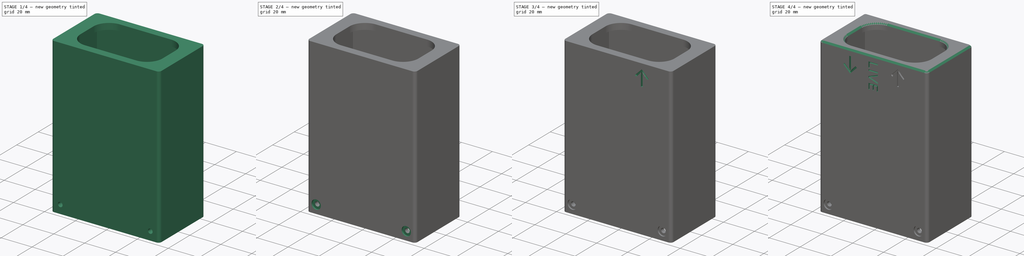
[diagram: build sequence overview — one tinted view per stage of 4, left to right]
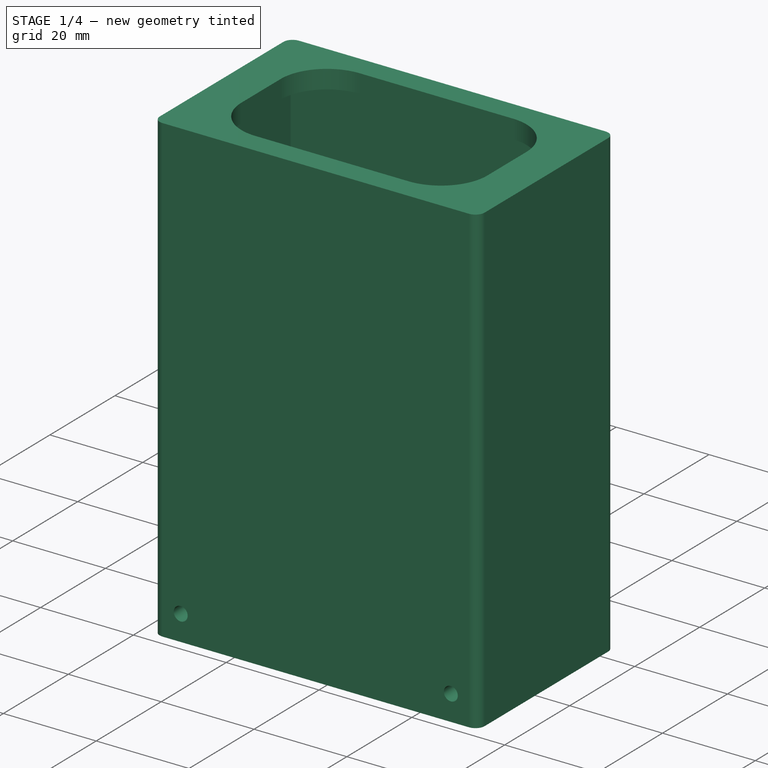
[diagram: stage 1 of 4 — iso view after this stage's code; geometry added in this stage tinted green]
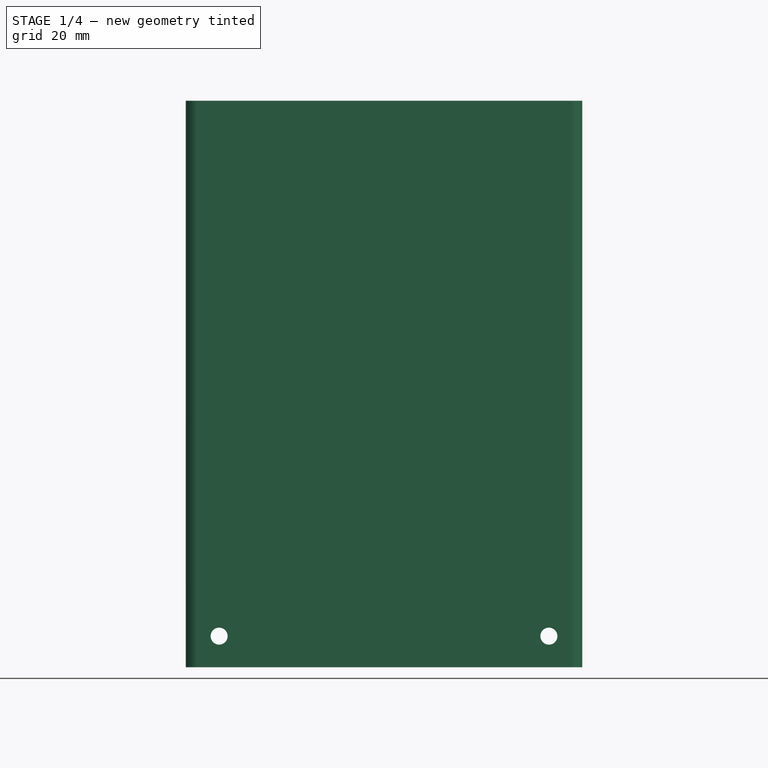
[diagram: stage 1 of 4 — front view after this stage's code; geometry added in this stage tinted green]
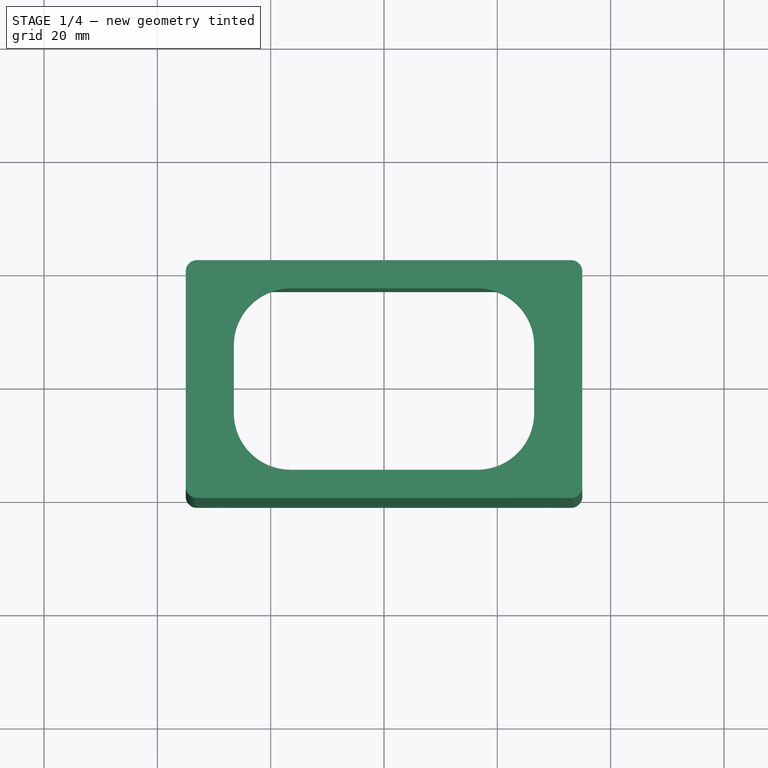
[diagram: stage 1 of 4 — top view after this stage's code; geometry added in this stage tinted green]
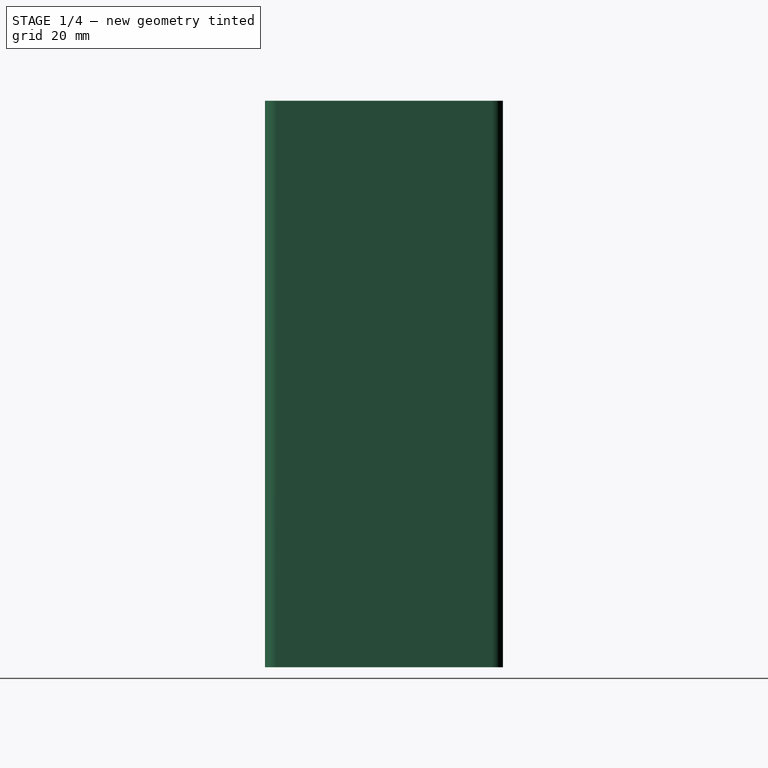
[diagram: stage 1 of 4 — right view after this stage's code; geometry added in this stage tinted green]
FCSTD DOCUMENT  (FreeCAD 1.0R38641 +678 (Git))
Label: 2xPiBox-VC-304-D
License: All rights reserved
LicenseURL: http://en.wikipedia.org/wiki/All_rights_reserved
objects: PartDesign::Pocket×9, Sketcher::SketchObject×5, Part::Part2DObjectPython×5, PartDesign::Pad×1, PartDesign::Chamfer×1, PartDesign::Body×1
note: 49 computed .brp shape members not serialized (recipe doc carries the construction recipe); baked Part::Feature solids carry a one-line shape summary decoded from their .brp

FEATURE [Sketcher::SketchObject] Sketch
  ArcFitTolerance = 1e-06
  AttachmentSupport = -> [XY_Plane]
  FullyConstrained = false
  MakeInternals = false
  MapMode = 5
  sketch-geometry (25):
    g0: LineSegment [constr] StartX=-33 StartY=18 StartZ=0 EndX=-33 EndY=-18 EndZ=0
    g1: LineSegment [constr] StartX=-33 StartY=-18 StartZ=0 EndX=33 EndY=-18 EndZ=0
    g2: LineSegment [constr] StartX=33 StartY=-18 StartZ=0 EndX=33 EndY=18 EndZ=0
    g3: LineSegment [constr] StartX=33 StartY=18 StartZ=0 EndX=-33 EndY=18 EndZ=0
    g4: GeomPoint [constr] X=-20340 Y=8191.99 Z=0
    g5: LineSegment StartX=-26.5 StartY=6 StartZ=0 EndX=-26.5 EndY=-6 EndZ=0
    g6: LineSegment StartX=-16.5 StartY=-16 StartZ=0 EndX=16.5 EndY=-16 EndZ=0
    g7: LineSegment StartX=26.5 StartY=-6 StartZ=0 EndX=26.5 EndY=6 EndZ=0
    g8: LineSegment StartX=16.5 StartY=16 StartZ=0 EndX=-16.5 EndY=16 EndZ=0
    g9: ArcOfCircle CenterX=-16.5 CenterY=6 CenterZ=0 NormalX=0 NormalY=0 NormalZ=1 AngleXU=0 Radius=10 StartAngle=1.5708 EndAngle=3.14159
    g10: ArcOfCircle CenterX=-16.5 CenterY=-6 CenterZ=0 NormalX=0 NormalY=0 NormalZ=1 AngleXU=0 Radius=10 StartAngle=3.14159 EndAngle=4.71239
    g11: ArcOfCircle CenterX=16.5 CenterY=-6 CenterZ=0 NormalX=0 NormalY=0 NormalZ=1 AngleXU=0 Radius=10 StartAngle=4.71239 EndAngle=6.28319
    g12: ArcOfCircle CenterX=16.5 CenterY=6 CenterZ=0 NormalX=0 NormalY=0 NormalZ=1 AngleXU=0 Radius=10 StartAngle=0 EndAngle=1.5708
    g13: GeomPoint [constr] X=-26.5 Y=16 Z=0
    g14: GeomPoint [constr] X=26.5 Y=-16 Z=0
    g15: LineSegment StartX=-34.9991 StartY=19 StartZ=0 EndX=-34.9991 EndY=-19 EndZ=0
    g16: LineSegment StartX=-32.9991 StartY=-21 StartZ=0 EndX=32.9991 EndY=-21 EndZ=0
    g17: LineSegment StartX=34.9991 StartY=-19 StartZ=0 EndX=34.9991 EndY=19 EndZ=0
    g18: LineSegment StartX=32.9991 StartY=21 StartZ=0 EndX=-32.9991 EndY=21 EndZ=0
    g19: ArcOfCircle CenterX=-32.9991 CenterY=19 CenterZ=0 NormalX=0 NormalY=0 NormalZ=1 AngleXU=0 Radius=2 StartAngle=1.5708 EndAngle=3.14159
    g20: ArcOfCircle CenterX=-32.9991 CenterY=-19 CenterZ=0 NormalX=0 NormalY=0 NormalZ=1 AngleXU=0 Radius=2 StartAngle=3.14159 EndAngle=4.71239
    g21: ArcOfCircle CenterX=32.9991 CenterY=-19 CenterZ=0 NormalX=0 NormalY=0 NormalZ=1 AngleXU=0 Radius=2 StartAngle=4.71239 EndAngle=6.28319
    g22: ArcOfCircle CenterX=32.9991 CenterY=19 CenterZ=0 NormalX=0 NormalY=0 NormalZ=1 AngleXU=0 Radius=2 StartAngle=0 EndAngle=1.5708
    g23: GeomPoint [constr] X=-34.9991 Y=21 Z=0
    g24: GeomPoint [constr] X=34.9991 Y=-21 Z=0
  constraints (52):
    c: Coincident(g0,g1)
    c: Coincident(g1,g2)
    c: Coincident(g2,g3)
    c: Coincident(g3,g0)
    c: Vertical(g2)
    c: Horizontal(g1)
    c: Symmetric(g0,g2,g-2)
    c: Symmetric(g0,g0,g-1)
    c: DistanceX(g3,g3) = 66
    c: DistanceY(g0,g0) = 36
    c: Tangent(g5,g9) = -1.5708
    c: Tangent(g5,g10) = -1.5708
    c: Tangent(g6,g10) = -1.5708
    c: Tangent(g6,g11) = -1.5708
    c: Tangent(g7,g11) = -1.5708
    c: Tangent(g7,g12) = -1.5708
    c: Tangent(g8,g12) = -1.5708
    c: Tangent(g8,g9) = -1.5708
    c: Vertical(g5)
    c: Horizontal(g6)
    c: Horizontal(g8)
    c: PointOnObject(g13,g5)
    c: PointOnObject(g13,g8)
    c: PointOnObject(g14,g6)
    c: PointOnObject(g14,g7)
    c: Symmetric(g7,g7,g-1)
    c: Symmetric(g5,g7,g-2)
    c: Symmetric(g8,g6,g-1)
    c: DistanceY(g8,g0) = 2
    c: Tangent(g15,g19) = -1.5708
    c: Tangent(g15,g20) = -1.5708
    c: Tangent(g16,g20) = -1.5708
    c: Tangent(g16,g21) = -1.5708
    c: Tangent(g17,g21) = -1.5708
    c: Tangent(g17,g22) = -1.5708
    c: Tangent(g18,g22) = -1.5708
    c: Tangent(g18,g19) = -1.5708
    c: Vertical(g15)
    c: Horizontal(g16)
    c: Equal(g19,g20)
    c: Equal(g20,g21)
    c: Equal(g21,g22)
    c: PointOnObject(g23,g15)
    c: PointOnObject(g23,g18)
    c: PointOnObject(g24,g16)
    c: PointOnObject(g24,g17)
    c: Radius(g19) = 2
    c: Symmetric(g18,g18,g-2)
    c: DistanceY(g8,g18) = 5
    c: Symmetric(g17,g17,g-1)
    c: Radius(g9) = 10
    c: DistanceX(g5,g7) = 53
FEATURE [PartDesign::Pad] Pad
  Direction = (0,0,1)
  Length = 100
  Length2 = 10
  Profile = -> Sketch
  ReferenceAxis = -> Sketch [N_Axis]
  Suppressed = false
  Type = 0
FEATURE [Sketcher::SketchObject] Sketch001
  ArcFitTolerance = 1e-06
  AttachmentSupport = -> [Pad]
  FullyConstrained = true
  MakeInternals = false
  MapMode = 5
  Placement = pos=(0,0,0) rot=(1,0,0;3.14159rad)
  sketch-geometry (4):
    g0: LineSegment StartX=-32.1 StartY=17.1 StartZ=0 EndX=-32.1 EndY=-17.1 EndZ=0
    g1: LineSegment StartX=-32.1 StartY=-17.1 StartZ=0 EndX=32.1 EndY=-17.1 EndZ=0
    g2: LineSegment StartX=32.1 StartY=-17.1 StartZ=0 EndX=32.1 EndY=17.1 EndZ=0
    g3: LineSegment StartX=32.1 StartY=17.1 StartZ=0 EndX=-32.1 EndY=17.1 EndZ=0
  constraints (10):
    c: Coincident(g0,g1)
    c: Coincident(g1,g2)
    c: Coincident(g2,g3)
    c: Coincident(g3,g0)
    c: Vertical(g2)
    c: Horizontal(g1)
    c: Symmetric(g0,g2,g-2)
    c: Symmetric(g0,g0,g-1)
    c: DistanceX(g3,g3) = 64.2
    c: DistanceY(g0,g0) = 34.2
FEATURE [PartDesign::Pocket] Pocket
  BaseFeature = -> Pad
  Direction = (0,0,1)
  Length = 96
  Length2 = 5
  Profile = -> Sketch001
  ReferenceAxis = -> Sketch001 [N_Axis]
  Suppressed = false
  Type = 0
FEATURE [Sketcher::SketchObject] Sketch002
  ArcFitTolerance = 1e-06
  AttachmentSupport = -> [Pocket]
  ExternalGeometry = -> [Pocket]
  FullyConstrained = true
  MakeInternals = false
  MapMode = 5
  Placement = pos=(0,-17.1,0) rot=(0,0.707107,0.707107;3.14159rad)
  sketch-geometry (2):
    g0: Circle CenterX=29.1 CenterY=5.5 CenterZ=0 NormalX=0 NormalY=0 NormalZ=1 AngleXU=0 Radius=1.5
    g1: Circle CenterX=-29.1 CenterY=5.5 CenterZ=0 NormalX=0 NormalY=0 NormalZ=1 AngleXU=0 Radius=1.5
  constraints (5):
    c: DistanceY(g0,g-3) = 90.5
    c: DistanceX(g0,g-4) = 3
    c: Equal(g1,g0)
    c: Radius(g0) = 1.5
    c: Symmetric(g1,g0,g-2)
FEATURE [PartDesign::Pocket] Pocket001
  BaseFeature = -> Pocket
  Direction = (0,-1,2e-16)
  Length = 5
  Length2 = 100
  Profile = -> Sketch002
  ReferenceAxis = -> Sketch002 [N_Axis]
  Suppressed = false
  Type = 4
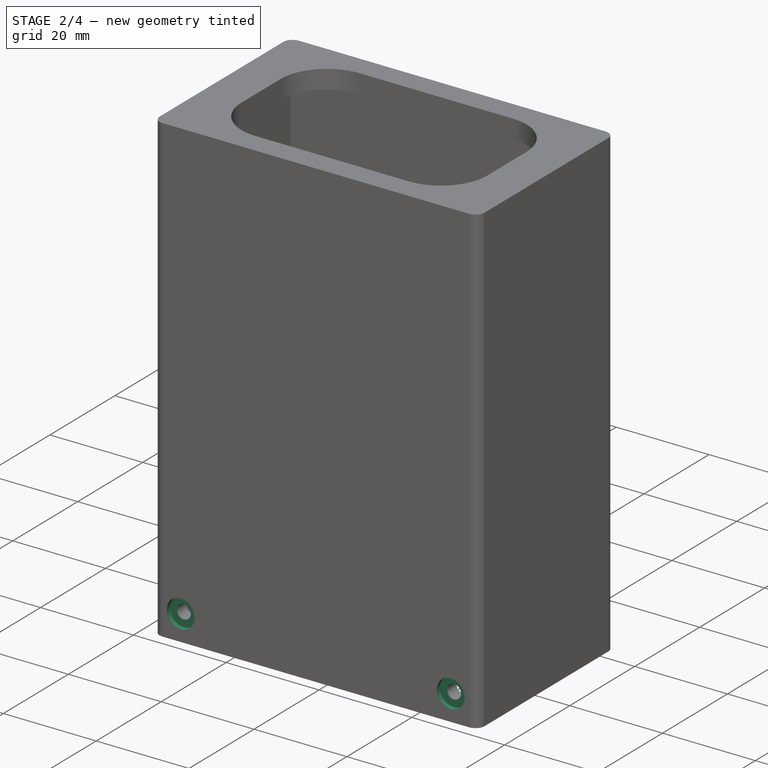
[diagram: stage 2 of 4 — iso view after this stage's code; geometry added in this stage tinted green]
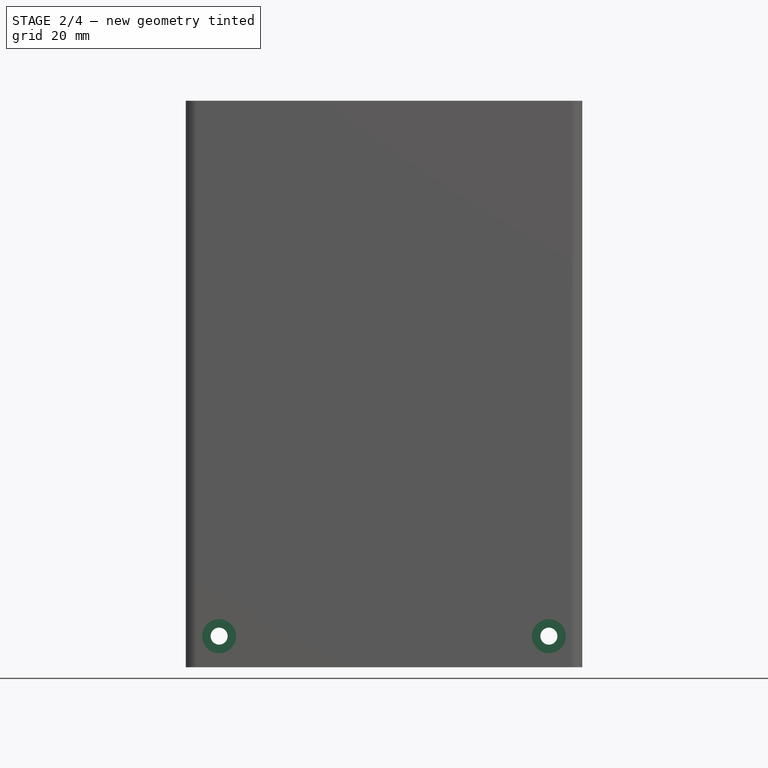
[diagram: stage 2 of 4 — front view after this stage's code; geometry added in this stage tinted green]
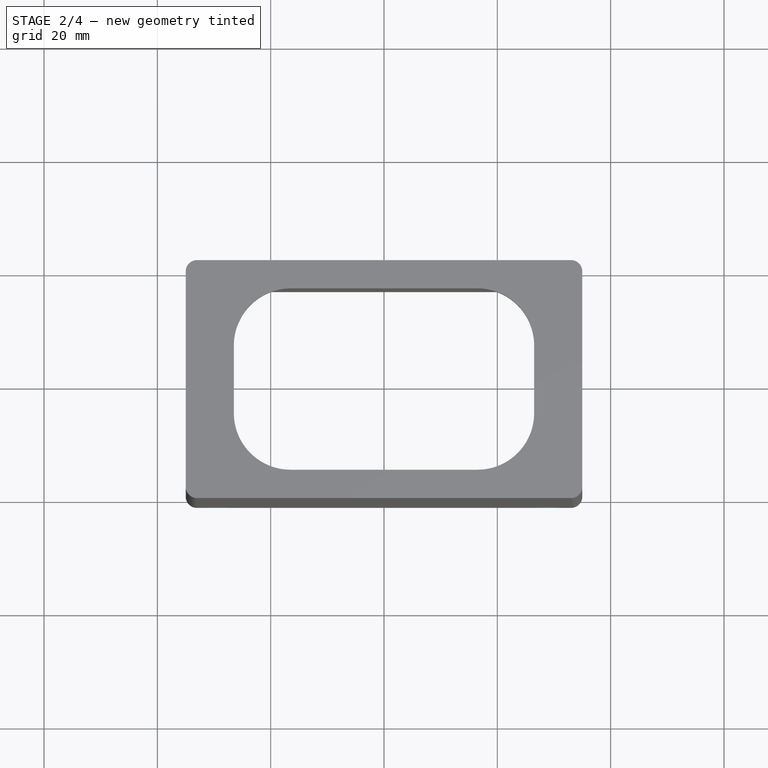
[diagram: stage 2 of 4 — top view after this stage's code; geometry added in this stage tinted green]
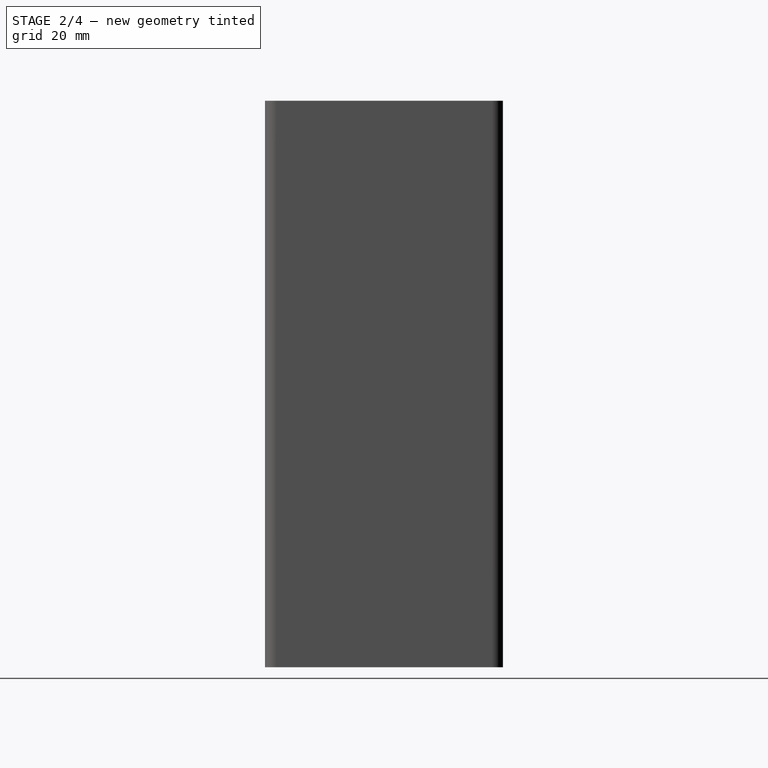
[diagram: stage 2 of 4 — right view after this stage's code; geometry added in this stage tinted green]
FEATURE [Sketcher::SketchObject] Sketch003
  ArcFitTolerance = 1e-06
  AttachmentSupport = -> [Pocket001]
  ExternalGeometry = -> [Pocket001]
  FullyConstrained = true
  MakeInternals = false
  MapMode = 5
  Placement = pos=(0,-21,0) rot=(1,0,0;1.5708rad)
  sketch-geometry (2):
    g0: Circle CenterX=-29.1 CenterY=5.5 CenterZ=0 NormalX=0 NormalY=0 NormalZ=1 AngleXU=0 Radius=3
    g1: Circle CenterX=29.1 CenterY=5.5 CenterZ=0 NormalX=0 NormalY=0 NormalZ=1 AngleXU=0 Radius=3
  constraints (4):
    c: Coincident(g0,g-3)
    c: Diameter(g0) = 6
    c: Coincident(g1,g-4)
    c: Equal(g1,g0)
FEATURE [PartDesign::Pocket] Pocket002
  BaseFeature = -> Pocket001
  Direction = (0,1,-2e-16)
  Length = 1
  Length2 = 5
  Profile = -> Sketch003
  ReferenceAxis = -> Sketch003 [N_Axis]
  Suppressed = false
  Type = 0
FEATURE [Sketcher::SketchObject] Sketch004
  ArcFitTolerance = 1e-06
  AttachmentSupport = -> [Pocket002]
  ExternalGeometry = -> [Pocket002]
  FullyConstrained = true
  MakeInternals = false
  MapMode = 5
  Placement = pos=(0,21,0) rot=(0,0.707107,0.707107;3.14159rad)
  sketch-geometry (2):
    g0: Circle CenterX=-29.1 CenterY=5.5 CenterZ=0 NormalX=0 NormalY=0 NormalZ=1 AngleXU=0 Radius=3.25
    g1: Circle CenterX=29.1 CenterY=5.5 CenterZ=0 NormalX=0 NormalY=0 NormalZ=1 AngleXU=0 Radius=3.25
  constraints (4):
    c: Coincident(g0,g-4)
    c: Coincident(g1,g-3)
    c: Equal(g1,g0)
    c: Diameter(g0) = 6.5
FEATURE [PartDesign::Pocket] Pocket003
  BaseFeature = -> Pocket002
  Direction = (0,-1,2e-16)
  Length = 2.5
  Length2 = 5
  Profile = -> Sketch004
  ReferenceAxis = -> Sketch004 [N_Axis]
  Suppressed = false
  Type = 0
FEATURE [Part::Part2DObjectPython] ShapeString  label="SLIDES-text"  # Draft 2D object (typed FeaturePython)
  FontFile = <userpath>/pp/indiafoss-video/enclosure/Inter-VariableFont_opsz,wght.ttf
  Fuse = false
  Justification = 6
  JustificationReference = 0
  KeepLeftMargin = false
  MakeFace = true
  ObliqueAngle = 0
  Placement = pos=(-34.9991,11.2236,96.7661) rot=(-0.707107,0,0.707107;3.14159rad)
  ScaleToSize = true
  Size = 5
  String = SLIDES
  Tracking = 0
FEATURE [Part::Part2DObjectPython] ShapeString001  label="VIDEO-text"  # Draft 2D object (typed FeaturePython)
  FontFile = <userpath>/pp/indiafoss-video/enclosure/Inter-VariableFont_opsz,wght.ttf
  Fuse = false
  Justification = 6
  JustificationReference = 0
  KeepLeftMargin = false
  MakeFace = true
  ObliqueAngle = 0
  Placement = pos=(-34.9991,-5.81481,96.9451) rot=(-0.707107,0,0.707107;3.14159rad)
  ScaleToSize = true
  Size = 5
  String = VIDEO
  Tracking = 0
FEATURE [PartDesign::Pocket] Pocket004
  BaseFeature = -> Pocket003
  Direction = (1,1e-16,0)
  Length = 1
  Length2 = 5
  Profile = -> ShapeString
  ReferenceAxis = -> ShapeString [N_Axis]
  Suppressed = false
  Type = 0
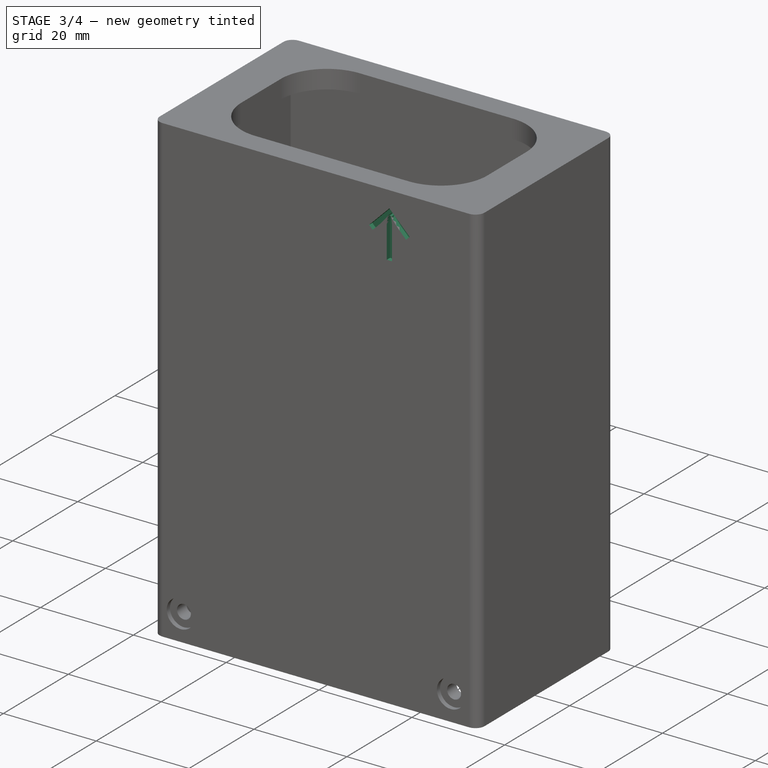
[diagram: stage 3 of 4 — iso view after this stage's code; geometry added in this stage tinted green]
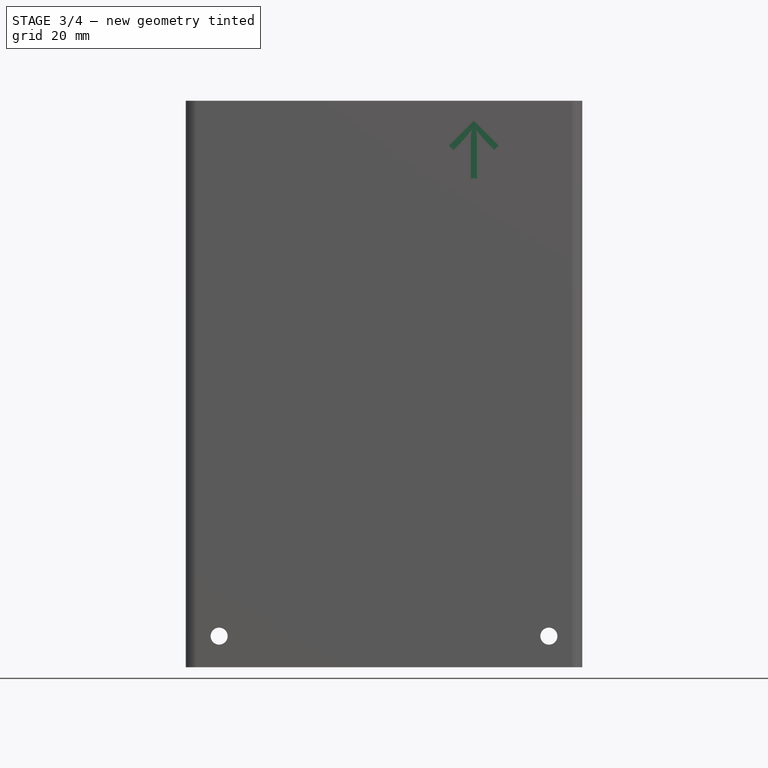
[diagram: stage 3 of 4 — front view after this stage's code; geometry added in this stage tinted green]
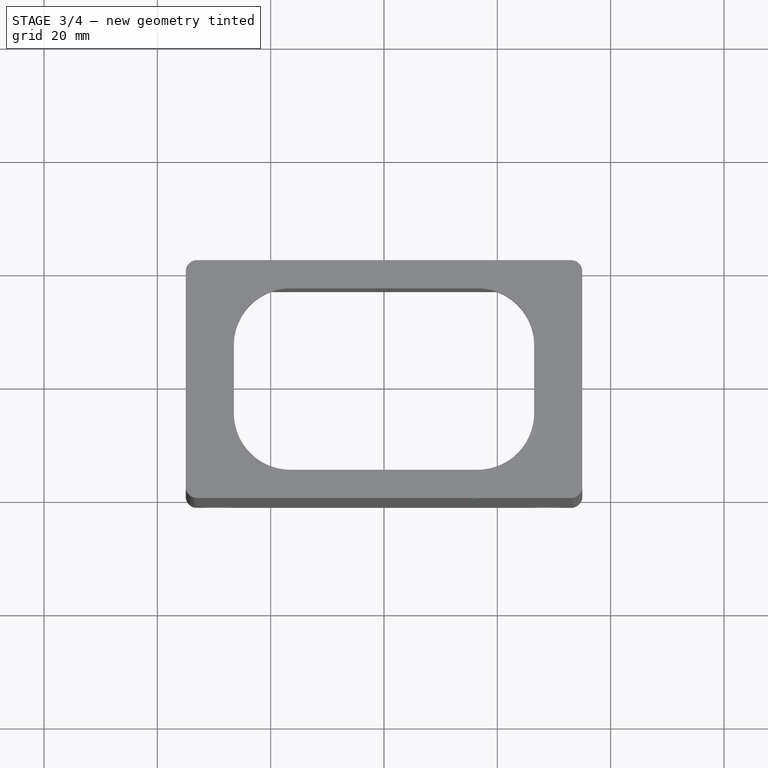
[diagram: stage 3 of 4 — top view after this stage's code; geometry added in this stage tinted green]
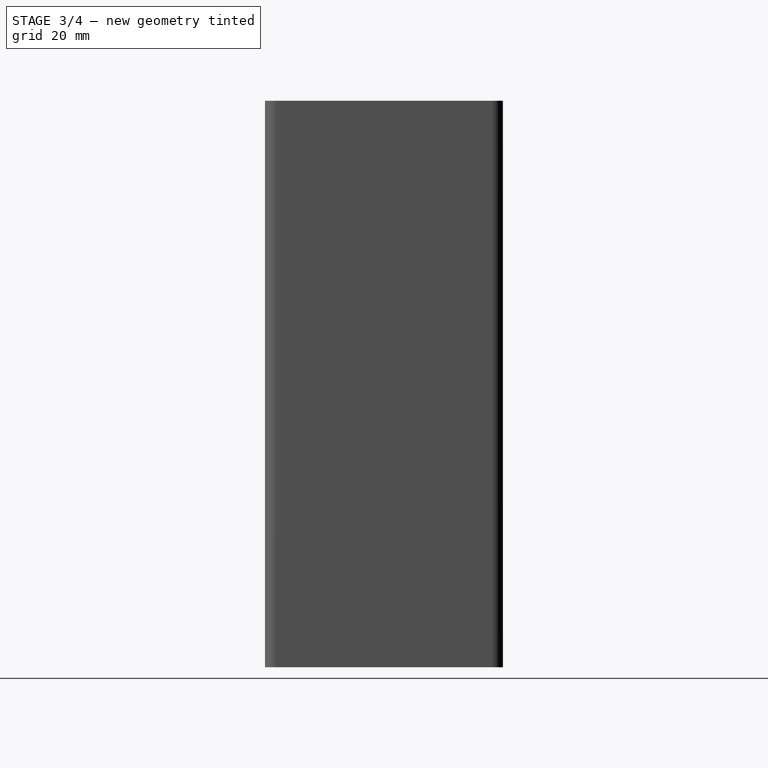
[diagram: stage 3 of 4 — right view after this stage's code; geometry added in this stage tinted green]
FEATURE [PartDesign::Pocket] Pocket005
  BaseFeature = -> Pocket004
  Direction = (1,1e-16,0)
  Length = 1
  Length2 = 5
  Profile = -> ShapeString001
  ReferenceAxis = -> ShapeString001 [N_Axis]
  Suppressed = false
  Type = 0
FEATURE [Part::Part2DObjectPython] ShapeString002  label="HDMI-out-arrow"  # Draft 2D object (typed FeaturePython)
  FontFile = <userpath>/pp/indiafoss-video/enclosure/Inter-VariableFont_opsz,wght.ttf
  Fuse = false
  Justification = 6
  JustificationReference = 0
  KeepLeftMargin = false
  MakeFace = true
  ObliqueAngle = 0
  Placement = pos=(11.49,-21,86.31) rot=(1,0,0;1.5708rad)
  ScaleToSize = true
  Size = 10
  String = ↑
  Tracking = 0
FEATURE [Part::Part2DObjectPython] ShapeString003  label="HDMI-In-arrow"  # Draft 2D object (typed FeaturePython)
  FontFile = <userpath>/pp/indiafoss-video/enclosure/Inter-VariableFont_opsz,wght.ttf
  Fuse = false
  Justification = 6
  JustificationReference = 0
  KeepLeftMargin = false
  MakeFace = true
  ObliqueAngle = 0
  Placement = pos=(-19.3399,-21,86.0679) rot=(1,0,0;1.5708rad)
  ScaleToSize = true
  Size = 10
  String = ↓
  Tracking = 0
FEATURE [PartDesign::Pocket] Pocket006
  BaseFeature = -> Pocket005
  Direction = (0,1,-2e-16)
  Length = 1
  Length2 = 5
  Profile = -> ShapeString002
  ReferenceAxis = -> ShapeString002 [N_Axis]
  Suppressed = false
  Type = 0
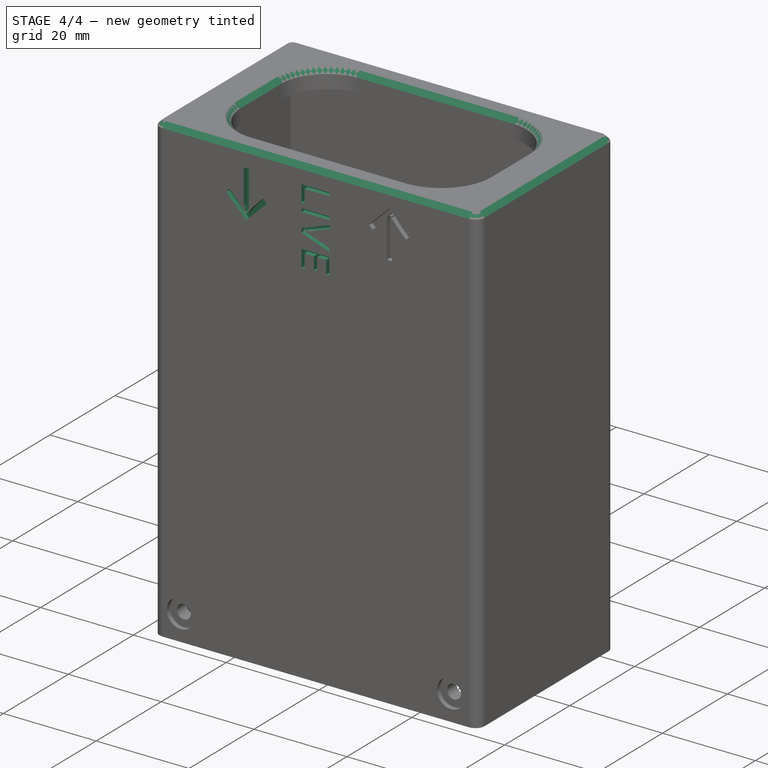
[diagram: stage 4 of 4 — iso view after this stage's code; geometry added in this stage tinted green]
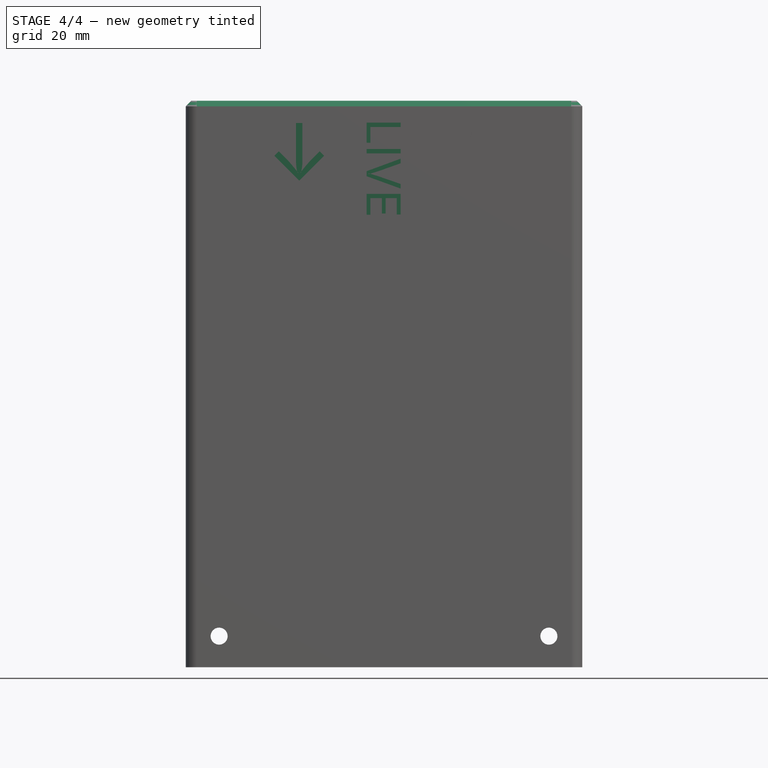
[diagram: stage 4 of 4 — front view after this stage's code; geometry added in this stage tinted green]
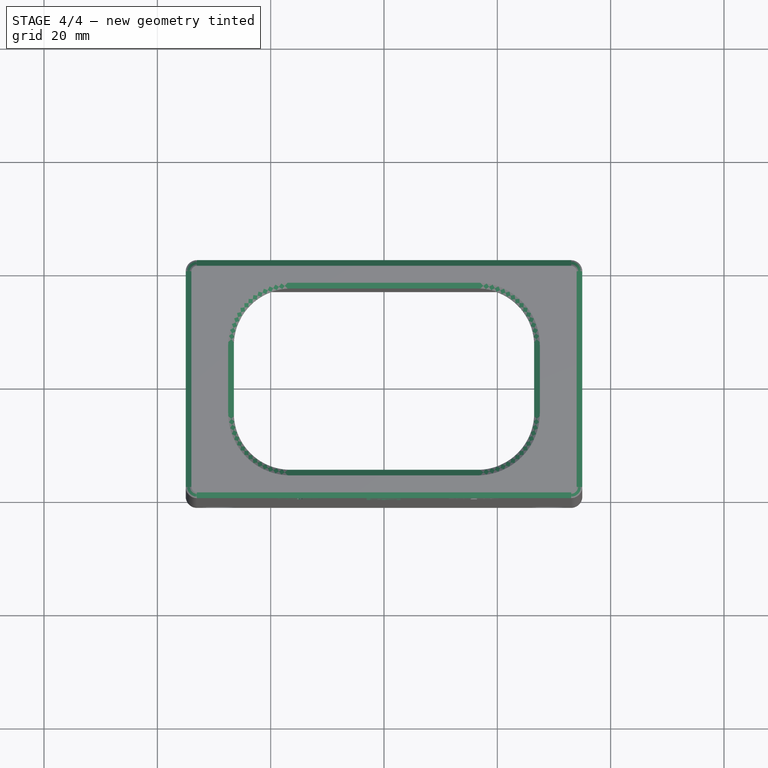
[diagram: stage 4 of 4 — top view after this stage's code; geometry added in this stage tinted green]
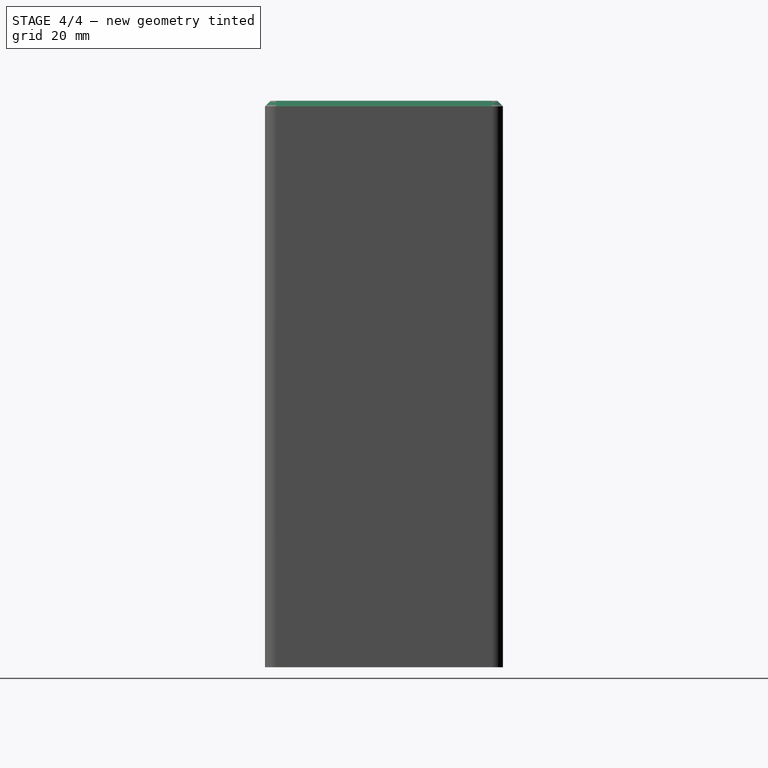
[diagram: stage 4 of 4 — right view after this stage's code; geometry added in this stage tinted green]
FEATURE [PartDesign::Pocket] Pocket007
  BaseFeature = -> Pocket006
  Direction = (0,1,-2e-16)
  Length = 1
  Length2 = 5
  Profile = -> ShapeString003
  ReferenceAxis = -> ShapeString003 [N_Axis]
  Suppressed = false
  Type = 0
FEATURE [PartDesign::Chamfer] Chamfer
  Angle = 45
  Base = -> Pocket007 [Edge180,Edge187]
  BaseFeature = -> Pocket007
  ChamferType = 0
  FlipDirection = false
  Size = 1
  Size2 = 1
  SupportTransform = false
  Suppressed = false
  UseAllEdges = false
FEATURE [Part::Part2DObjectPython] ShapeString004  # Draft 2D object (typed FeaturePython)
  FontFile = <userpath>/pp/indiafoss-video/enclosure/Inter-VariableFont_opsz,wght.ttf
  Fuse = false
  Justification = 6
  JustificationReference = 0
  KeepLeftMargin = false
  MakeFace = true
  ObliqueAngle = 0
  Placement = pos=(-3.07,-21,96.12) rot=(-0.57735,-0.57735,0.57735;4.18879rad)
  ScaleToSize = true
  Size = 6
  String = LIVE
  Tracking = 0
FEATURE [PartDesign::Pocket] Pocket008
  BaseFeature = -> Chamfer
  Direction = (0,1,-2e-16)
  Length = 1
  Length2 = 5
  Profile = -> ShapeString004
  ReferenceAxis = -> ShapeString004 [N_Axis]
  Suppressed = false
  Type = 0
FEATURE [PartDesign::Body] Body
  AllowCompound = false
  Group = -> [Sketch,Pad,Sketch001,Pocket,Sketch002,Pocket001,Sketch003,Pocket002,Sketch004,Pocket003,ShapeString,ShapeString001,Pocket004,Pocket005,ShapeString002,ShapeString003,Pocket006,Pocket007,Chamfer,ShapeString004,Pocket008]
  Origin = -> Origin
  Tip = -> Pocket008
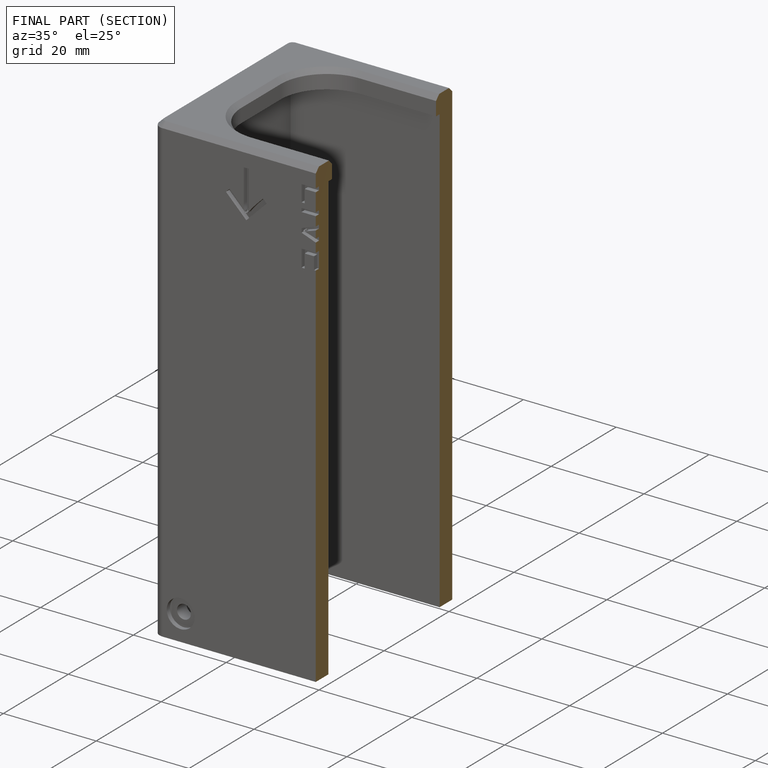
[diagram: finished part — half-section view (interior)]
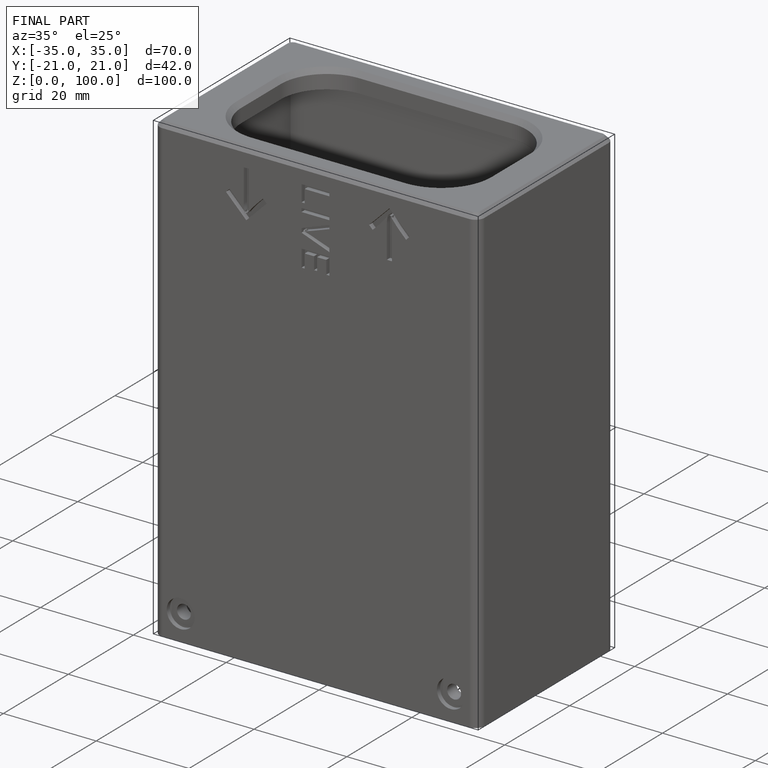
[diagram: finished part — iso view with bounding-box wireframe]
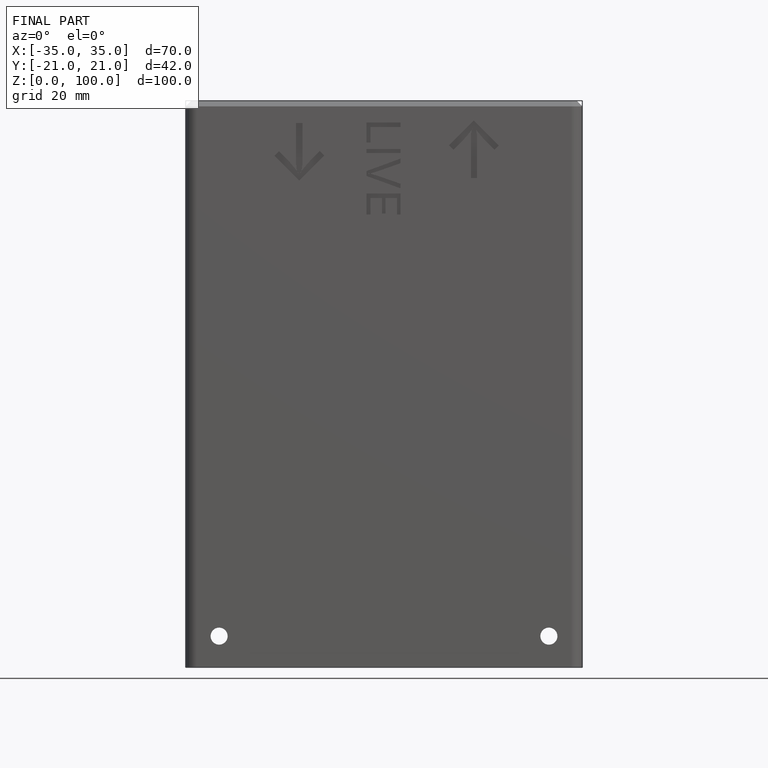
[diagram: finished part — front view with bounding-box wireframe]
